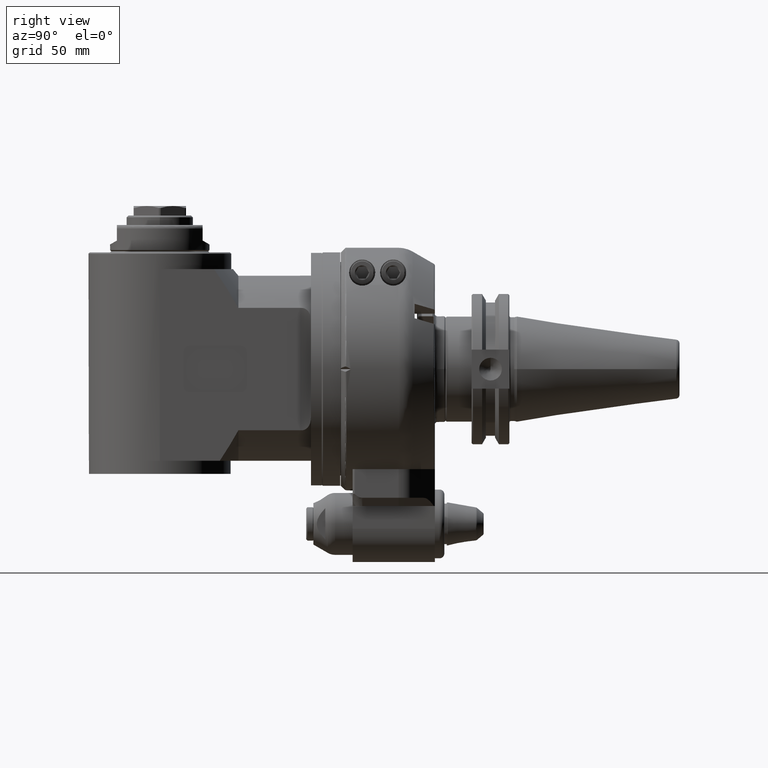
[diagram: clean part render]
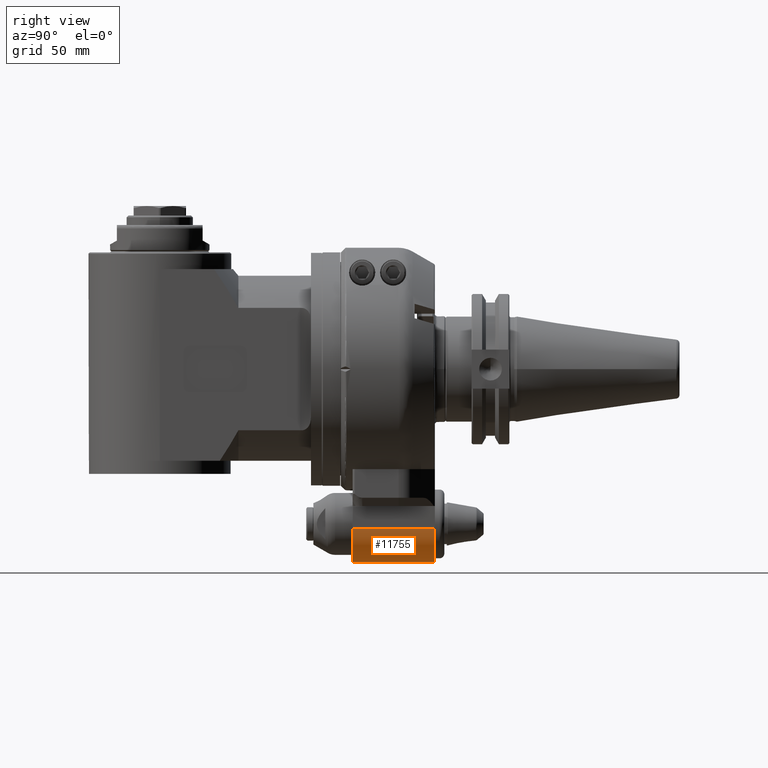
[diagram: same view with one face highlighted and labeled with its STEP entity id]
A machine part, right view. The second image highlights one B-rep face of the part: STEP entity #11755.
In plain terms, the highlighted cylindrical surface (edge-blend (fillet) strip) has radius 14 mm, axis along (0, 1, 0).
Its self-contained STEP definition (entity closure, byte-faithful):
#1410=FACE_OUTER_BOUND('',#2211,.T.);
#2211=EDGE_LOOP('',(#9789,#9790,#9791,#9792));
#3075=LINE('',#20241,#3850);
#3076=LINE('',#20251,#3851);
#3850=VECTOR('',#15804,34.5);
#3851=VECTOR('',#15815,34.5);
#4509=CIRCLE('',#12940,14.);
#4517=CIRCLE('',#12960,14.);
#5495=VERTEX_POINT('',#20026);
#5496=VERTEX_POINT('',#20028);
#5522=VERTEX_POINT('',#20128);
#5523=VERTEX_POINT('',#20130);
#6952=EDGE_CURVE('',#5495,#5496,#4509,.T.);
#6992=EDGE_CURVE('',#5522,#5523,#4517,.T.);
#7039=EDGE_CURVE('',#5522,#5496,#3075,.T.);
#7043=EDGE_CURVE('',#5495,#5523,#3076,.T.);
#9789=ORIENTED_EDGE('',*,*,#7043,.T.);
#9790=ORIENTED_EDGE('',*,*,#6992,.F.);
#9791=ORIENTED_EDGE('',*,*,#7039,.T.);
#9792=ORIENTED_EDGE('',*,*,#6952,.F.);
#11241=CYLINDRICAL_SURFACE('',#12995,14.);
#11755=ADVANCED_FACE('',(#1410),#11241,.T.);
#12940=AXIS2_PLACEMENT_3D('',#20029,#15648,#15649);
#12960=AXIS2_PLACEMENT_3D('',#20131,#15715,#15716);
#12995=AXIS2_PLACEMENT_3D('',#20250,#15813,#15814);
#15648=DIRECTION('center_axis',(0.,-1.,0.));
#15649=DIRECTION('ref_axis',(0.,0.,-1.));
#15715=DIRECTION('center_axis',(0.,1.,0.));
#15716=DIRECTION('ref_axis',(1.,0.,0.));
#15804=DIRECTION('',(0.,-1.,0.));
#15813=DIRECTION('center_axis',(0.,1.,0.));
#15814=DIRECTION('ref_axis',(0.,0.,1.));
#15815=DIRECTION('',(0.,1.,0.));
#20026=CARTESIAN_POINT('',(1.,5.,-81.));
#20028=CARTESIAN_POINT('',(15.,5.,-67.));
#20029=CARTESIAN_POINT('Origin',(1.,5.,-67.));
#20128=CARTESIAN_POINT('',(15.,39.5,-67.));
#20130=CARTESIAN_POINT('',(1.,39.5,-81.));
#20131=CARTESIAN_POINT('Origin',(1.,39.5,-67.));
#20241=CARTESIAN_POINT('',(15.,39.5,-67.));
#20250=CARTESIAN_POINT('Origin',(1.,31.,-67.));
#20251=CARTESIAN_POINT('',(1.,5.,-81.));